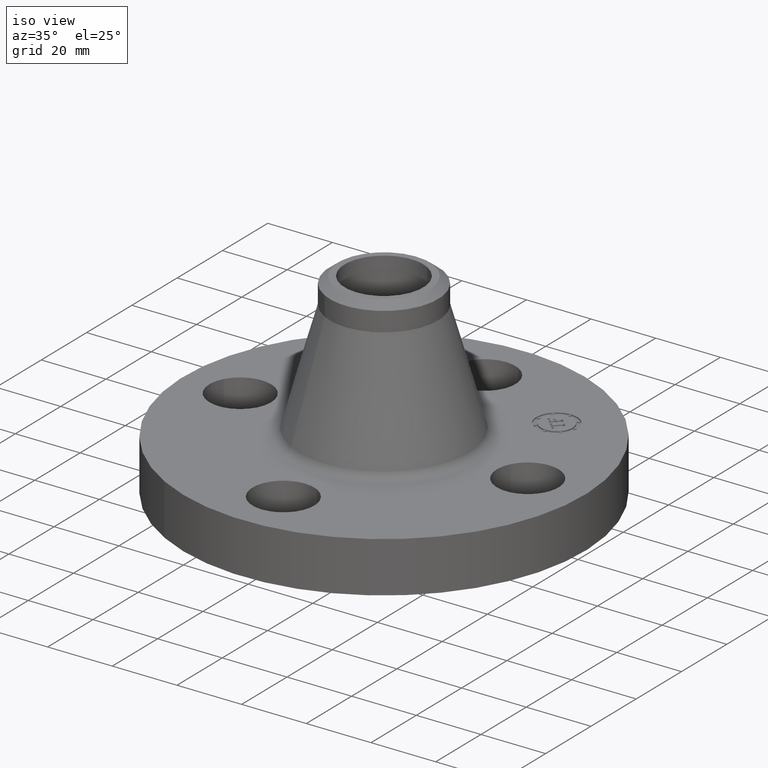
[diagram: clean part render]
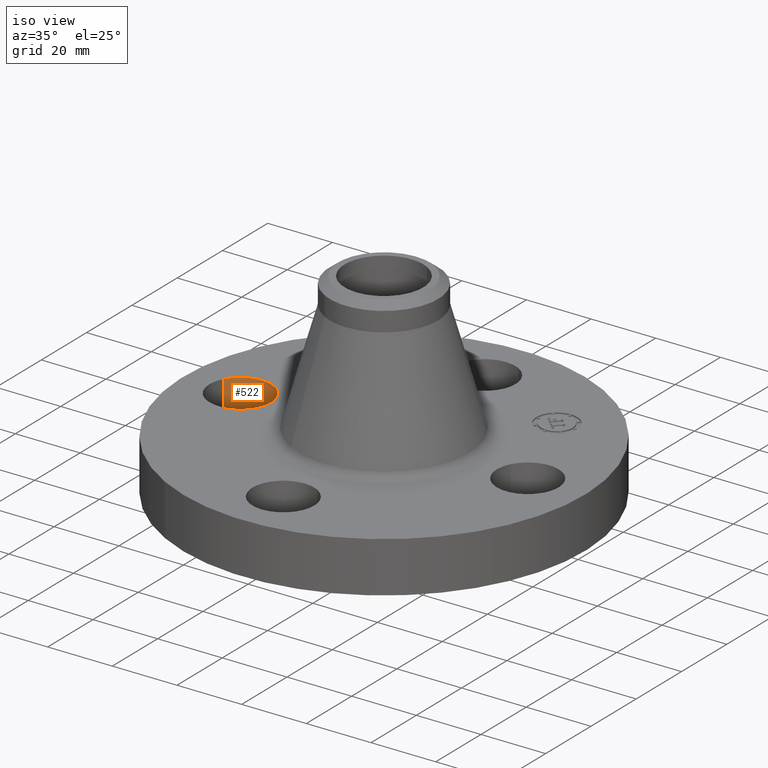
[diagram: same view with one face highlighted and labeled with its STEP entity id]
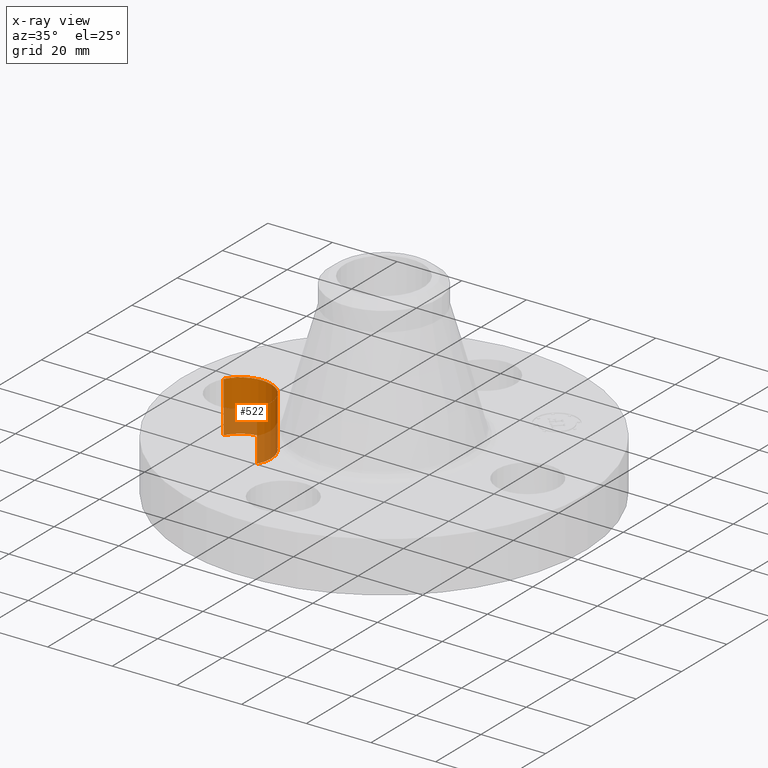
[diagram: x-ray of the same camera — body ghosted, the highlighted face saturated]
A machine part, iso view. The second image highlights one B-rep face of the part: STEP entity #522.
The next image is the same camera in x-ray: the body ghosted, the highlighted face saturated — about 42% of this face is hidden behind the body in this view.
In plain terms, the highlighted cylindrical surface (partial cylindrical patch) has radius 9.525 mm, axis along (0, 0, -1).
Its self-contained STEP definition (entity closure, byte-faithful):
#198=AXIS2_PLACEMENT_3D('Circle Axis2P3D',#196,#197,$) ;
#296=AXIS2_PLACEMENT_3D('Circle Axis2P3D',#294,#295,$) ;
#514=AXIS2_PLACEMENT_3D('Cylinder Axis2P3D',#511,#512,#513) ;
#191=CARTESIAN_POINT('Vertex',(-1.42090653927,-0.179784576945,0.)) ;
#193=CARTESIAN_POINT('Vertex',(-2.07909346074,0.179784577001,0.)) ;
#196=CARTESIAN_POINT('Axis2P3D Location',(-1.75000000001,1.53531780465E-011,0.)) ;
#294=CARTESIAN_POINT('Axis2P3D Location',(-1.75000000001,5.40152349795E-012,0.620000000002)) ;
#298=CARTESIAN_POINT('Vertex',(-2.07909346074,0.179784576991,0.620000000002)) ;
#300=CARTESIAN_POINT('Vertex',(-1.4209065393,-0.179784576978,0.619999999987)) ;
#487=CARTESIAN_POINT('Line Origine',(-1.4209065393,-0.179784576978,0.310000000001)) ;
#492=CARTESIAN_POINT('Line Origine',(-2.07909346072,0.179784576978,0.310000000001)) ;
#511=CARTESIAN_POINT('Axis2P3D Location',(-1.75000000001,-2.14313189852E-016,0.616062992128)) ;
#197=DIRECTION('Axis2P3D Direction',(0.,0.,-0.0393700787402)) ;
#295=DIRECTION('Axis2P3D Direction',(0.,0.,-0.0393700787402)) ;
#488=DIRECTION('Vector Direction',(0.,0.,-0.0393700787402)) ;
#493=DIRECTION('Vector Direction',(0.,0.,-0.0393700787402)) ;
#512=DIRECTION('Axis2P3D Direction',(0.,0.,-0.0393700787402)) ;
#513=DIRECTION('Axis2P3D XDirection',(-0.0345504945626,0.0188750212049,0.)) ;
#489=VECTOR('Line Direction',#488,0.0393700787402) ;
#494=VECTOR('Line Direction',#493,0.0393700787402) ;
#517=ORIENTED_EDGE('',*,*,#496,.F.) ;
#518=ORIENTED_EDGE('',*,*,#200,.T.) ;
#519=ORIENTED_EDGE('',*,*,#491,.T.) ;
#520=ORIENTED_EDGE('',*,*,#302,.F.) ;
#522=ADVANCED_FACE('PartBody',(#521),#515,.F.) ;
#199=CIRCLE('generated circle',#198,0.375000000021) ;
#297=CIRCLE('generated circle',#296,0.375000000021) ;
#515=CYLINDRICAL_SURFACE('generated cylinder',#514,0.375000000002) ;
#200=EDGE_CURVE('',#194,#192,#199,.T.) ;
#302=EDGE_CURVE('',#299,#301,#297,.T.) ;
#491=EDGE_CURVE('',#192,#301,#490,.F.) ;
#496=EDGE_CURVE('',#194,#299,#495,.F.) ;
#516=EDGE_LOOP('',(#517,#518,#519,#520)) ;
#521=FACE_OUTER_BOUND('',#516,.T.) ;
#490=LINE('Line',#487,#489) ;
#495=LINE('Line',#492,#494) ;
#192=VERTEX_POINT('',#191) ;
#194=VERTEX_POINT('',#193) ;
#299=VERTEX_POINT('',#298) ;
#301=VERTEX_POINT('',#300) ;